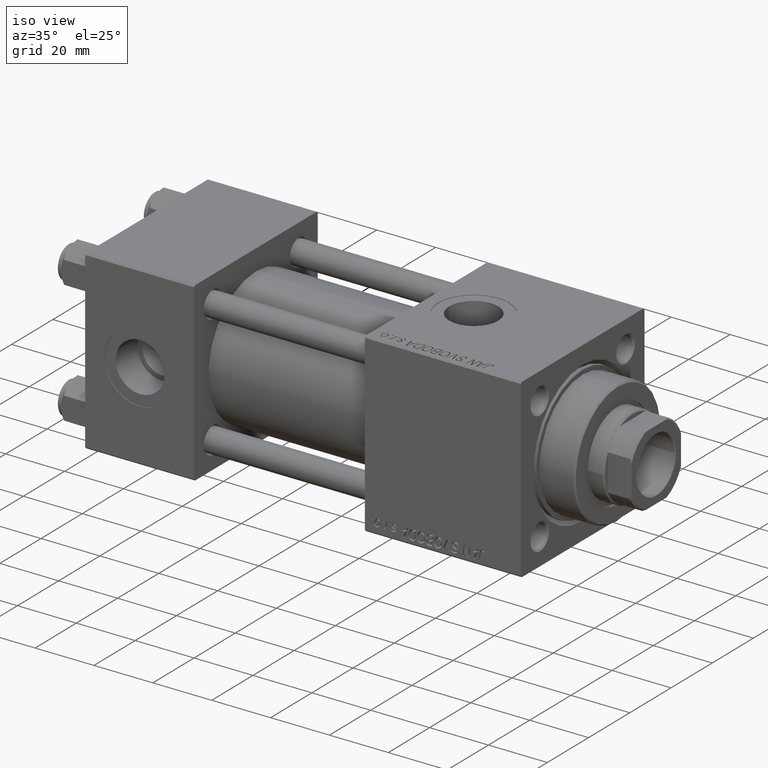
[diagram: clean part render]
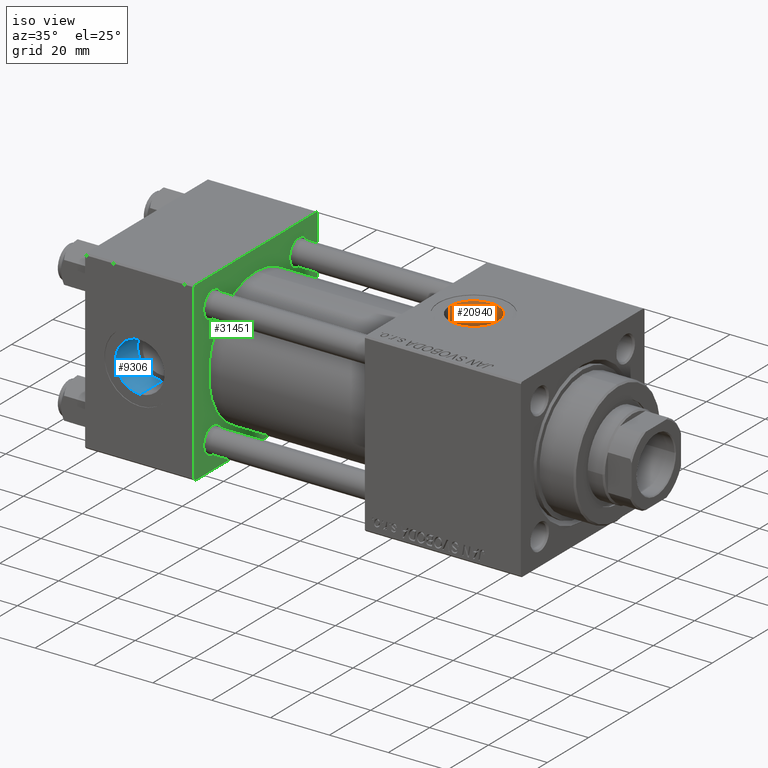
[diagram: same view with three faces highlighted in distinct colors, each labeled with its STEP entity id]
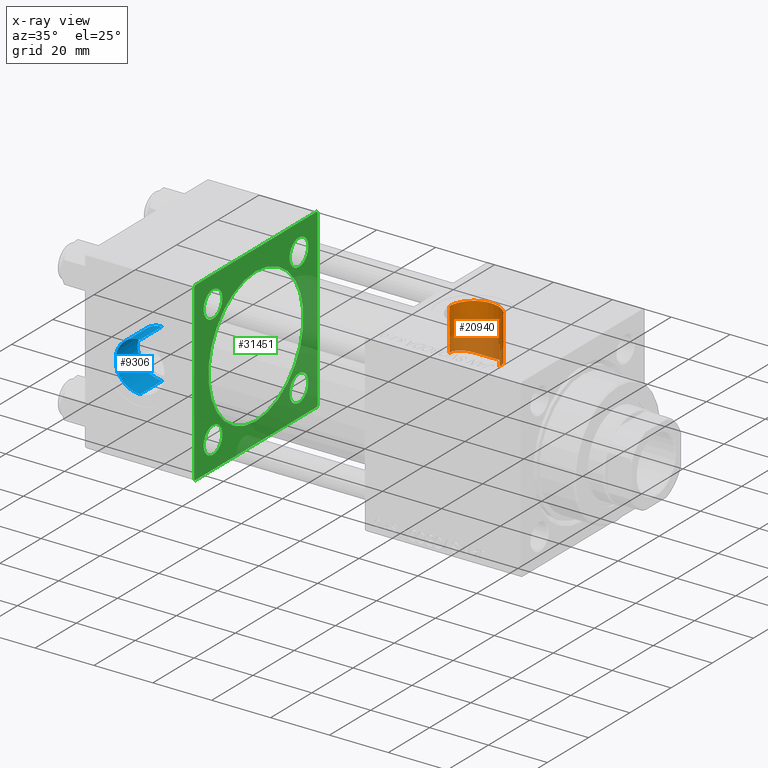
[diagram: x-ray of the same camera — body ghosted, the three highlighted faces saturated]
A machine part, iso view with three faces highlighted in distinct colors.
The next image is the same camera in x-ray (body ghosted, the three faces saturated) — at least one of them is partly hidden behind the body in this view.
Their STEP definitions:

[orange] entity #20940 — the highlighted cylindrical surface (edge-blend (fillet) strip) has radius 8.33 mm, axis along (0, 0, -1).
#1090 = CARTESIAN_POINT ( 'NONE',  ( 102.7748422588737611, 1.345113678925240475, 15.44384467796440497 ) ) ;
#1525 = DIRECTION ( 'NONE',  ( -0.000000000000000000, -0.000000000000000000, -1.000000000000000000 ) ) ;
#1835 = CARTESIAN_POINT ( 'NONE',  ( 118.1821809494404505, 4.252752687106064577, 14.91311828418762353 ) ) ;
#1926 = FACE_OUTER_BOUND ( 'NONE', #26411, .T. ) ;
#2587 = CARTESIAN_POINT ( 'NONE',  ( 119.2999999999999829, 0.7063285354565354002, 15.48389808801387701 ) ) ;
#2767 = VECTOR ( 'NONE', #33463, 1000.000000000000000 ) ;
#3403 = EDGE_CURVE ( 'NONE', #34019, #42695, #7935, .T. ) ;
#4410 = CARTESIAN_POINT ( 'NONE',  ( 114.7878989153694107, 7.423653917640651301, 13.60720322249615144 ) ) ;
#4443 = EDGE_CURVE ( 'NONE', #7072, #43447, #38496, .T. ) ;
#4902 = CARTESIAN_POINT ( 'NONE',  ( 103.4884433949717391, 3.639785051710008545, 15.07496769168805351 ) ) ;
#5156 = CARTESIAN_POINT ( 'NONE',  ( 105.7567134674390417, 6.493535737546835662, 14.07819411470011239 ) ) ;
#5408 = CARTESIAN_POINT ( 'NONE',  ( 108.5224199253087818, 7.970776178815810020, 13.29429473676388973 ) ) ;
#6659 = CARTESIAN_POINT ( 'NONE',  ( 118.5428870207784797, 3.544564506934533732, 15.09123298641117650 ) ) ;
#7072 = VERTEX_POINT ( 'NONE', #44964 ) ;
#7935 = B_SPLINE_CURVE_WITH_KNOTS ( 'NONE', 3,
 ( #45295, #37151, #48113, #32594 ),
 .UNSPECIFIED., .F., .F.,
 ( 4, 4 ),
 ( 0.000000000000000000, 0.0007063285354565328363 ),
 .UNSPECIFIED. ) ;
#8215 = CARTESIAN_POINT ( 'NONE',  ( 109.5605833038424208, 8.209149030831014215, 13.14769526555237533 ) ) ;
#8608 = AXIS2_PLACEMENT_3D ( 'NONE', #44179, #1525, #39853 ) ;
#8719 = CARTESIAN_POINT ( 'NONE',  ( 119.3300000000000125, 2.755455270027974659E-15, 22.50000000000000355 ) ) ;
#8963 = CARTESIAN_POINT ( 'NONE',  ( 110.0961245563538711, 8.285231283310348971, 13.09988401430628535 ) ) ;
#9299 = DIRECTION ( 'NONE',  ( 0.000000000000000000, 0.000000000000000000, -1.000000000000000000 ) ) ;
#9714 = CARTESIAN_POINT ( 'NONE',  ( 118.9347458643765805, 2.549478185781639983, 15.29108801674696139 ) ) ;
#10142 = CARTESIAN_POINT ( 'NONE',  ( 119.2999999999999829, 0.7063285354565354002, 52.79999999999999716 ) ) ;
#10463 = CARTESIAN_POINT ( 'NONE',  ( 119.1550002228559748, 1.780279521111761465, 15.40614980614642171 ) ) ;
#12262 = CARTESIAN_POINT ( 'NONE',  ( 103.0866881673992452, 2.655374492085107896, 15.27912538186901692 ) ) ;
#12460 = CARTESIAN_POINT ( 'NONE',  ( 119.3300000000000125, -2.449316168263869032E-15, 52.79999999999999716 ) ) ;
#12770 = CARTESIAN_POINT ( 'NONE',  ( 107.3002806938656590, 7.468012193495477291, 13.58288275005221379 ) ) ;
#13014 = CARTESIAN_POINT ( 'NONE',  ( 112.7879913300364905, 8.140303239488138942, 13.19058330274246593 ) ) ;
#14606 = ORIENTED_EDGE ( 'NONE', *, *, #49025, .F. ) ;
#15828 = CARTESIAN_POINT ( 'NONE',  ( 114.0650487448087489, 7.750150897617362311, 13.42370947118261171 ) ) ;
#16822 = CARTESIAN_POINT ( 'NONE',  ( 102.9323351773737869, 2.143895289495521883, 15.36035123208332109 ) ) ;
#17260 = LINE ( 'NONE', #12460, #41518 ) ;
#17321 = CARTESIAN_POINT ( 'NONE',  ( 116.1213706297519224, 6.590259460215506238, 14.03424939317718945 ) ) ;
#18062 = CARTESIAN_POINT ( 'NONE',  ( 115.7013846757648139, 6.896553212426753454, 13.88449017423048204 ) ) ;
#19064 = EDGE_CURVE ( 'NONE', #7072, #22666, #49962, .T. ) ;
#19450 = EDGE_CURVE ( 'NONE', #43447, #40252, #31754, .T. ) ;
#19876 = CARTESIAN_POINT ( 'NONE',  ( 115.0228866172804487, 7.298933092229524355, 13.67473780800534833 ) ) ;
#20366 = CARTESIAN_POINT ( 'NONE',  ( 103.7382412053277676, 4.114622947877689896, 14.95093430025990600 ) ) ;
#20621 = CARTESIAN_POINT ( 'NONE',  ( 111.1827731937053017, 8.345639263937126628, 13.06143459154865738 ) ) ;
#20641 = ORIENTED_EDGE ( 'NONE', *, *, #19450, .T. ) ;
#20867 = CARTESIAN_POINT ( 'NONE',  ( 109.2976579557378756, 8.158530844714539043, 13.17929287996980747 ) ) ;
#20940 = ADVANCED_FACE ( 'NONE', ( #1926 ), #44322, .F. ) ;
#21115 = CARTESIAN_POINT ( 'NONE',  ( 116.9021014551140070, 5.901284207169342544, 14.33759116759393493 ) ) ;
#21370 = CARTESIAN_POINT ( 'NONE',  ( 118.8491620312711774, 2.801948762054946140, 15.24674929831635595 ) ) ;
#22666 = VERTEX_POINT ( 'NONE', #46671 ) ;
#23388 = ORIENTED_EDGE ( 'NONE', *, *, #4443, .T. ) ;
#23640 = ORIENTED_EDGE ( 'NONE', *, *, #3403, .T. ) ;
#23687 = CARTESIAN_POINT ( 'NONE',  ( 113.5653903393932751, 7.929573453247051873, 13.31850891624571531 ) ) ;
#23942 = CARTESIAN_POINT ( 'NONE',  ( 102.7353150131715722, 1.075514947314766045, 15.46498077916762526 ) ) ;
#24432 = CARTESIAN_POINT ( 'NONE',  ( 106.6103928475615135, 7.084409057837727453, 13.78705986442867193 ) ) ;
#24623 = DIRECTION ( 'NONE',  ( 0.000000000000000000, 0.000000000000000000, -1.000000000000000000 ) ) ;
#25173 = CARTESIAN_POINT ( 'NONE',  ( 119.2535736795805832, 1.251879847823938130, 15.45901168942802251 ) ) ;
#26411 = EDGE_LOOP ( 'NONE', ( #36569, #45768, #23388, #20641, #14606, #23640 ) ) ;
#27488 = CARTESIAN_POINT ( 'NONE',  ( 104.3108638884341701, 4.991865470557804052, 14.68134318030003804 ) ) ;
#27990 = CARTESIAN_POINT ( 'NONE',  ( 102.6830263376666181, 0.5382373393380799342, 15.49298755787481774 ) ) ;
#29059 = CARTESIAN_POINT ( 'NONE',  ( 111.0000000000000000, -3.469446951953613794E-15, 52.79999999999999716 ) ) ;
#29735 = CARTESIAN_POINT ( 'NONE',  ( 117.9017814515972162, 4.693120186998884336, 14.77885283960395668 ) ) ;
#31754 = B_SPLINE_CURVE_WITH_KNOTS ( 'NONE', 3,
 ( #39661, #35354, #27990, #23942, #1090, #16822, #12262, #4902, #20366, #27488, #39422, #35849, #5156, #32291, #24432, #47566, #12770, #43730, #5408, #20867, #8215, #8963, #39915, #20621, #36107, #47806, #13014, #43985, #23687, #15828, #39173, #4410, #19876, #18062, #17321, #21115, #40906, #29735, #1835, #6659, #33543, #21370, #9714, #10463, #25173, #2587 ),
 .UNSPECIFIED., .F., .F.,
 ( 4, 2, 2, 2, 2, 2, 2, 2, 2, 2, 2, 2, 2, 2, 2, 2, 2, 2, 2, 2, 2, 2, 4 ),
 ( 0.02586561750490627698, 0.02667257115183745836, 0.02747952479876863974, 0.02909343209263099903, 0.03070733938649336178, 0.03232124668035572107, 0.03393515397421808383, 0.03474210762114926521, 0.03554906126808044659, 0.03716296856194277465, 0.03796992220887392133, 0.03877687585580506108, 0.04039078314966738914, 0.04119773679659853582, 0.04200469044352968251, 0.04281164409046082225, 0.04361859773739196200, 0.04523250503125424843, 0.04684641232511653486, 0.04846031961897881435, 0.04926727326590996797, 0.05007422691284112160, 0.05168813420670342190 ),
 .UNSPECIFIED. ) ;
#32291 = CARTESIAN_POINT ( 'NONE',  ( 106.3914020546078660, 6.943847275614624337, 13.85860288735603696 ) ) ;
#32594 = CARTESIAN_POINT ( 'NONE',  ( 119.3300000000000125, 2.755455270027974659E-15, 22.50000000000000355 ) ) ;
#33463 = DIRECTION ( 'NONE',  ( 0.000000000000000000, 0.000000000000000000, -1.000000000000000000 ) ) ;
#33543 = CARTESIAN_POINT ( 'NONE',  ( 118.6535066739793223, 3.299105492354561520, 15.14695296028899207 ) ) ;
#34019 = VERTEX_POINT ( 'NONE', #43824 ) ;
#35169 = DIRECTION ( 'NONE',  ( 0.000000000000000000, 0.000000000000000000, -1.000000000000000000 ) ) ;
#35354 = CARTESIAN_POINT ( 'NONE',  ( 102.6700000000000443, 0.2692781161559564818, 15.50000000000000355 ) ) ;
#35849 = CARTESIAN_POINT ( 'NONE',  ( 105.3619139893283432, 6.154303259437297058, 14.23165687271048085 ) ) ;
#36107 = CARTESIAN_POINT ( 'NONE',  ( 111.7204179385424112, 8.316316922132150680, 13.08044599360020044 ) ) ;
#36569 = ORIENTED_EDGE ( 'NONE', *, *, #45724, .F. ) ;
#36691 = VECTOR ( 'NONE', #35169, 1000.000000000000000 ) ;
#37151 = CARTESIAN_POINT ( 'NONE',  ( 119.3200361445783102, 0.4708856903043578401, 22.49630535626710781 ) ) ;
#37817 = AXIS2_PLACEMENT_3D ( 'NONE', #29059, #9299, #40243 ) ;
#38496 = LINE ( 'NONE', #42295, #36691 ) ;
#39173 = CARTESIAN_POINT ( 'NONE',  ( 114.3094557415239905, 7.648942304453065333, 13.48185071310164318 ) ) ;
#39422 = CARTESIAN_POINT ( 'NONE',  ( 104.6351521567280258, 5.399275359235570448, 14.53490046566675176 ) ) ;
#39661 = CARTESIAN_POINT ( 'NONE',  ( 102.6700000000000017, 1.898304232322969090E-15, 15.50000000000000000 ) ) ;
#39853 = DIRECTION ( 'NONE',  ( 1.000000000000000000, 0.000000000000000000, 0.000000000000000000 ) ) ;
#39915 = CARTESIAN_POINT ( 'NONE',  ( 110.3699255016522756, 8.310562936261201017, 13.08375847227048894 ) ) ;
#40243 = DIRECTION ( 'NONE',  ( -1.000000000000000000, 0.000000000000000000, 0.000000000000000000 ) ) ;
#40252 = VERTEX_POINT ( 'NONE', #41415 ) ;
#40906 = CARTESIAN_POINT ( 'NONE',  ( 117.2636960965467665, 5.515983638965261449, 14.49185263653180478 ) ) ;
#41415 = CARTESIAN_POINT ( 'NONE',  ( 119.2999999999999829, 0.7063285354565354002, 15.48389808801387701 ) ) ;
#41518 = VECTOR ( 'NONE', #24623, 1000.000000000000000 ) ;
#42295 = CARTESIAN_POINT ( 'NONE',  ( 102.6700000000000017, -3.469446951953613794E-15, 52.79999999999999716 ) ) ;
#42695 = VERTEX_POINT ( 'NONE', #8719 ) ;
#43447 = VERTEX_POINT ( 'NONE', #43465 ) ;
#43465 = CARTESIAN_POINT ( 'NONE',  ( 102.6700000000000017, 1.898304232322969090E-15, 15.50000000000000000 ) ) ;
#43730 = CARTESIAN_POINT ( 'NONE',  ( 108.0235363201844763, 7.798107477347327787, 13.39787891672378706 ) ) ;
#43824 = CARTESIAN_POINT ( 'NONE',  ( 119.2999999999999829, 0.7063285354565354002, 22.48891060056044466 ) ) ;
#43985 = CARTESIAN_POINT ( 'NONE',  ( 113.3101403164750565, 8.007790053772854577, 13.27144766602746984 ) ) ;
#44179 = CARTESIAN_POINT ( 'NONE',  ( 111.0000000000000000, -3.469446951953613794E-15, 29.79999999999999716 ) ) ;
#44322 = CYLINDRICAL_SURFACE ( 'NONE', #37817, 8.330000000000003624 ) ;
#44911 = LINE ( 'NONE', #10142, #2767 ) ;
#44964 = CARTESIAN_POINT ( 'NONE',  ( 102.6700000000000017, -3.469446951953613794E-15, 29.79999999999999716 ) ) ;
#45295 = CARTESIAN_POINT ( 'NONE',  ( 119.2999999999999829, 0.7063285354565354002, 22.48891060056044466 ) ) ;
#45724 = EDGE_CURVE ( 'NONE', #22666, #42695, #17260, .T. ) ;
#45768 = ORIENTED_EDGE ( 'NONE', *, *, #19064, .F. ) ;
#46671 = CARTESIAN_POINT ( 'NONE',  ( 119.3300000000000125, -2.449316168263869821E-15, 29.79999999999999716 ) ) ;
#47566 = CARTESIAN_POINT ( 'NONE',  ( 107.0641356425913244, 7.346187746824329956, 13.64937350183227771 ) ) ;
#47806 = CARTESIAN_POINT ( 'NONE',  ( 112.5206788388489372, 8.194464177599160237, 13.15686343614056142 ) ) ;
#48113 = CARTESIAN_POINT ( 'NONE',  ( 119.3300000000000125, 0.2354428451521802246, 22.50000000000000355 ) ) ;
#49025 = EDGE_CURVE ( 'NONE', #34019, #40252, #44911, .T. ) ;
#49962 = CIRCLE ( 'NONE', #8608, 8.330000000000003624 ) ;

[blue] entity #9306 — the highlighted cylindrical surface (edge-blend (fillet) strip) has radius 8.33 mm, axis along (-0, -1, -0).
#729 = AXIS2_PLACEMENT_3D ( 'NONE', #47691, #6039, #12655 ) ;
#847 = CARTESIAN_POINT ( 'NONE',  ( 18.50000000000000000, -19.09999999999999787, 8.330000000000003624 ) ) ;
#1406 = EDGE_CURVE ( 'NONE', #42720, #17650, #49504, .T. ) ;
#3674 = CARTESIAN_POINT ( 'NONE',  ( 18.50000000000000000, -19.09999999999999787, -8.330000000000000071 ) ) ;
#6039 = DIRECTION ( 'NONE',  ( 0.000000000000000000, -1.000000000000000000, -8.673617379884036705E-17 ) ) ;
#6205 = VECTOR ( 'NONE', #41679, 1000.000000000000000 ) ;
#6690 = CIRCLE ( 'NONE', #30985, 8.330000000000001847 ) ;
#9306 = ADVANCED_FACE ( 'NONE', ( #38062 ), #42629, .F. ) ;
#11620 = EDGE_LOOP ( 'NONE', ( #25888, #35494, #38956, #27765 ) ) ;
#11845 = CARTESIAN_POINT ( 'NONE',  ( 18.50000000000000000, -19.09999999999999787, 9.454242944073598665E-16 ) ) ;
#12655 = DIRECTION ( 'NONE',  ( 0.000000000000000000, 0.000000000000000000, -1.000000000000000000 ) ) ;
#15400 = DIRECTION ( 'NONE',  ( 0.000000000000000000, -1.000000000000000000, -8.673617379884036705E-17 ) ) ;
#16932 = VERTEX_POINT ( 'NONE', #42083 ) ;
#17650 = VERTEX_POINT ( 'NONE', #29273 ) ;
#20184 = EDGE_CURVE ( 'NONE', #40124, #16932, #42438, .T. ) ;
#21812 = DIRECTION ( 'NONE',  ( -0.000000000000000000, -1.000000000000000000, -8.673617379884036705E-17 ) ) ;
#25888 = ORIENTED_EDGE ( 'NONE', *, *, #45967, .F. ) ;
#26308 = EDGE_CURVE ( 'NONE', #17650, #16932, #44504, .T. ) ;
#26701 = CARTESIAN_POINT ( 'NONE',  ( 18.50000000000000000, -19.09999999999999787, -8.330000000000000071 ) ) ;
#27765 = ORIENTED_EDGE ( 'NONE', *, *, #20184, .F. ) ;
#29273 = CARTESIAN_POINT ( 'NONE',  ( 18.50000000000000000, -29.80000000000000071, 8.330000000000001847 ) ) ;
#30985 = AXIS2_PLACEMENT_3D ( 'NONE', #11845, #15400, #46879 ) ;
#31193 = DIRECTION ( 'NONE',  ( 0.000000000000000000, 0.000000000000000000, -1.000000000000000000 ) ) ;
#35494 = ORIENTED_EDGE ( 'NONE', *, *, #1406, .T. ) ;
#37811 = CARTESIAN_POINT ( 'NONE',  ( 18.50000000000000000, -19.09999999999999787, 9.454242944073598665E-16 ) ) ;
#38062 = FACE_OUTER_BOUND ( 'NONE', #11620, .T. ) ;
#38956 = ORIENTED_EDGE ( 'NONE', *, *, #26308, .T. ) ;
#40124 = VERTEX_POINT ( 'NONE', #3674 ) ;
#40849 = CARTESIAN_POINT ( 'NONE',  ( 18.50000000000000000, -19.09999999999999787, 8.330000000000003624 ) ) ;
#41679 = DIRECTION ( 'NONE',  ( -0.000000000000000000, -1.000000000000000000, -8.673617379884036705E-17 ) ) ;
#42083 = CARTESIAN_POINT ( 'NONE',  ( 18.50000000000000000, -29.80000000000000071, -8.330000000000001847 ) ) ;
#42438 = LINE ( 'NONE', #26701, #6205 ) ;
#42629 = CYLINDRICAL_SURFACE ( 'NONE', #43259, 8.330000000000001847 ) ;
#42720 = VERTEX_POINT ( 'NONE', #847 ) ;
#43259 = AXIS2_PLACEMENT_3D ( 'NONE', #37811, #46456, #31193 ) ;
#44504 = CIRCLE ( 'NONE', #729, 8.330000000000001847 ) ;
#45523 = VECTOR ( 'NONE', #21812, 1000.000000000000000 ) ;
#45967 = EDGE_CURVE ( 'NONE', #42720, #40124, #6690, .T. ) ;
#46456 = DIRECTION ( 'NONE',  ( -0.000000000000000000, -1.000000000000000000, -8.673617379884036705E-17 ) ) ;
#46879 = DIRECTION ( 'NONE',  ( 0.000000000000000000, 0.000000000000000000, -1.000000000000000000 ) ) ;
#47691 = CARTESIAN_POINT ( 'NONE',  ( 18.50000000000000000, -29.80000000000000071, 1.734723475976808635E-17 ) ) ;
#49504 = LINE ( 'NONE', #40849, #45523 ) ;

[green] entity #31451 — the highlighted planar face has unit normal (-1, 0, 0).
#279 = DIRECTION ( 'NONE',  ( -0.000000000000000000, 0.7071067811865574537, 0.7071067811865376918 ) ) ;
#300 = CIRCLE ( 'NONE', #10046, 4.499999999999990230 ) ;
#814 = FACE_BOUND ( 'NONE', #28755, .T. ) ;
#917 = VERTEX_POINT ( 'NONE', #44364 ) ;
#1301 = AXIS2_PLACEMENT_3D ( 'NONE', #3675, #46317, #41992 ) ;
#1407 = CARTESIAN_POINT ( 'NONE',  ( 37.00000000000000000, -2.602085213965210642E-15, 0.000000000000000000 ) ) ;
#1598 = CARTESIAN_POINT ( 'NONE',  ( 37.00000000000000000, -2.602085213965210642E-15, 0.000000000000000000 ) ) ;
#1803 = VECTOR ( 'NONE', #22546, 1000.000000000000114 ) ;
#1858 = VECTOR ( 'NONE', #47618, 1000.000000000000000 ) ;
#1862 = CIRCLE ( 'NONE', #29306, 4.499999999999990230 ) ;
#1880 = VECTOR ( 'NONE', #37049, 1000.000000000000000 ) ;
#1889 = DIRECTION ( 'NONE',  ( 0.000000000000000000, 0.000000000000000000, 1.000000000000000000 ) ) ;
#1940 = VERTEX_POINT ( 'NONE', #47128 ) ;
#1983 = LINE ( 'NONE', #41294, #15665 ) ;
#2146 = DIRECTION ( 'NONE',  ( -1.000000000000000000, 0.000000000000000000, -0.000000000000000000 ) ) ;
#2746 = ORIENTED_EDGE ( 'NONE', *, *, #4859, .T. ) ;
#2810 = DIRECTION ( 'NONE',  ( 0.000000000000000000, 0.7071067811865474617, -0.7071067811865474617 ) ) ;
#3311 = LINE ( 'NONE', #41367, #37295 ) ;
#3675 = CARTESIAN_POINT ( 'NONE',  ( 37.00000000000000000, -20.84999999999999076, 20.85000000000000497 ) ) ;
#3807 = EDGE_LOOP ( 'NONE', ( #7277, #26837 ) ) ;
#4384 = ORIENTED_EDGE ( 'NONE', *, *, #28495, .T. ) ;
#4577 = CARTESIAN_POINT ( 'NONE',  ( 37.00000000000000000, 20.84999999999999787, -25.34999999999999076 ) ) ;
#4859 = EDGE_CURVE ( 'NONE', #1940, #14398, #36547, .T. ) ;
#5107 = DIRECTION ( 'NONE',  ( 0.000000000000000000, 0.000000000000000000, 1.000000000000000000 ) ) ;
#5248 = ORIENTED_EDGE ( 'NONE', *, *, #9127, .T. ) ;
#5374 = CIRCLE ( 'NONE', #1301, 4.499999999999990230 ) ;
#5921 = DIRECTION ( 'NONE',  ( 0.000000000000000000, 0.000000000000000000, 1.000000000000000000 ) ) ;
#5994 = ORIENTED_EDGE ( 'NONE', *, *, #42490, .T. ) ;
#6123 = VERTEX_POINT ( 'NONE', #34948 ) ;
#6159 = EDGE_CURVE ( 'NONE', #43427, #1940, #31152, .T. ) ;
#6727 = CARTESIAN_POINT ( 'NONE',  ( 37.00000000000000000, 20.84999999999999787, 20.85000000000000142 ) ) ;
#7081 = CARTESIAN_POINT ( 'NONE',  ( 37.00000000000000000, 29.49999999999999289, 30.00000000000000000 ) ) ;
#7277 = ORIENTED_EDGE ( 'NONE', *, *, #9187, .T. ) ;
#7500 = EDGE_CURVE ( 'NONE', #49513, #41013, #49708, .T. ) ;
#8253 = AXIS2_PLACEMENT_3D ( 'NONE', #1598, #17076, #5921 ) ;
#8929 = VERTEX_POINT ( 'NONE', #14343 ) ;
#9127 = EDGE_CURVE ( 'NONE', #41013, #49513, #300, .T. ) ;
#9187 = EDGE_CURVE ( 'NONE', #12851, #30074, #28637, .T. ) ;
#10046 = AXIS2_PLACEMENT_3D ( 'NONE', #24888, #40121, #16029 ) ;
#10352 = DIRECTION ( 'NONE',  ( 0.000000000000000000, -1.000000000000000000, -1.156482317317871725E-16 ) ) ;
#11258 = EDGE_LOOP ( 'NONE', ( #47841, #23788 ) ) ;
#11494 = AXIS2_PLACEMENT_3D ( 'NONE', #1407, #16887, #46201 ) ;
#11956 = EDGE_CURVE ( 'NONE', #50203, #35382, #27783, .T. ) ;
#12016 = VERTEX_POINT ( 'NONE', #13820 ) ;
#12651 = CARTESIAN_POINT ( 'NONE',  ( 37.00000000000000000, -20.84999999999999076, -25.34999999999999432 ) ) ;
#12726 = CARTESIAN_POINT ( 'NONE',  ( 37.00000000000000000, -20.84999999999999076, -20.85000000000000497 ) ) ;
#12851 = VERTEX_POINT ( 'NONE', #12651 ) ;
#13381 = AXIS2_PLACEMENT_3D ( 'NONE', #6727, #29290, #25988 ) ;
#13785 = VERTEX_POINT ( 'NONE', #44452 ) ;
#13820 = CARTESIAN_POINT ( 'NONE',  ( 37.00000000000000000, 29.49999999999997868, -30.00000000000000000 ) ) ;
#14321 = CARTESIAN_POINT ( 'NONE',  ( 37.00000000000000000, -30.00000000000000000, 29.49999999999999289 ) ) ;
#14343 = CARTESIAN_POINT ( 'NONE',  ( 37.00000000000000000, 2.146024240737012665E-16, -23.00000000000000000 ) ) ;
#14398 = VERTEX_POINT ( 'NONE', #37501 ) ;
#14432 = CARTESIAN_POINT ( 'NONE',  ( 37.00000000000000000, -20.84999999999999076, -20.85000000000000497 ) ) ;
#15548 = CARTESIAN_POINT ( 'NONE',  ( 37.00000000000000000, 29.99999999999999289, 29.50000000000000000 ) ) ;
#15665 = VECTOR ( 'NONE', #10352, 1000.000000000000000 ) ;
#16029 = DIRECTION ( 'NONE',  ( 0.000000000000000000, 0.000000000000000000, 1.000000000000000000 ) ) ;
#16543 = DIRECTION ( 'NONE',  ( -0.000000000000000000, 0.000000000000000000, 1.000000000000000000 ) ) ;
#16595 = ORIENTED_EDGE ( 'NONE', *, *, #11956, .T. ) ;
#16887 = DIRECTION ( 'NONE',  ( 1.000000000000000000, -0.000000000000000000, 0.000000000000000000 ) ) ;
#17076 = DIRECTION ( 'NONE',  ( 1.000000000000000000, -0.000000000000000000, 0.000000000000000000 ) ) ;
#17780 = VECTOR ( 'NONE', #279, 999.9999999999998863 ) ;
#18818 = CIRCLE ( 'NONE', #48826, 4.499999999999990230 ) ;
#19896 = EDGE_CURVE ( 'NONE', #13785, #43514, #5374, .T. ) ;
#20091 = CARTESIAN_POINT ( 'NONE',  ( 37.00000000000000000, 0.000000000000000000, 0.000000000000000000 ) ) ;
#20454 = AXIS2_PLACEMENT_3D ( 'NONE', #37389, #2146, #1889 ) ;
#22546 = DIRECTION ( 'NONE',  ( 0.000000000000000000, -0.7071067811865474617, 0.7071067811865474617 ) ) ;
#22650 = AXIS2_PLACEMENT_3D ( 'NONE', #20091, #24402, #16543 ) ;
#23202 = DIRECTION ( 'NONE',  ( 0.000000000000000000, 0.000000000000000000, 1.000000000000000000 ) ) ;
#23444 = DIRECTION ( 'NONE',  ( -1.000000000000000000, 0.000000000000000000, -0.000000000000000000 ) ) ;
#23560 = CARTESIAN_POINT ( 'NONE',  ( 37.00000000000000000, -30.00000000000000000, 29.49999999999999289 ) ) ;
#23788 = ORIENTED_EDGE ( 'NONE', *, *, #37763, .F. ) ;
#24402 = DIRECTION ( 'NONE',  ( -1.000000000000000000, 0.000000000000000000, -0.000000000000000000 ) ) ;
#24888 = CARTESIAN_POINT ( 'NONE',  ( 37.00000000000000000, 20.84999999999999787, -20.85000000000000142 ) ) ;
#25185 = ORIENTED_EDGE ( 'NONE', *, *, #46920, .F. ) ;
#25988 = DIRECTION ( 'NONE',  ( 0.000000000000000000, 0.000000000000000000, 1.000000000000000000 ) ) ;
#26237 = CARTESIAN_POINT ( 'NONE',  ( 37.00000000000000000, 20.84999999999999787, -16.35000000000001208 ) ) ;
#26356 = DIRECTION ( 'NONE',  ( -1.000000000000000000, 0.000000000000000000, -0.000000000000000000 ) ) ;
#26837 = ORIENTED_EDGE ( 'NONE', *, *, #43693, .T. ) ;
#26910 = CARTESIAN_POINT ( 'NONE',  ( 37.00000000000000000, -20.84999999999999076, 25.34999999999999432 ) ) ;
#27039 = EDGE_LOOP ( 'NONE', ( #37335, #5994 ) ) ;
#27538 = DIRECTION ( 'NONE',  ( 0.000000000000000000, 0.000000000000000000, -1.000000000000000000 ) ) ;
#27783 = LINE ( 'NONE', #47613, #28708 ) ;
#28044 = CARTESIAN_POINT ( 'NONE',  ( 37.00000000000000000, 29.99999999999999289, 30.00000000000000000 ) ) ;
#28257 = CARTESIAN_POINT ( 'NONE',  ( 37.00000000000000000, -2.602085213965210642E-15, 23.00000000000000000 ) ) ;
#28495 = EDGE_CURVE ( 'NONE', #12016, #49903, #37845, .T. ) ;
#28535 = LINE ( 'NONE', #28044, #1858 ) ;
#28637 = CIRCLE ( 'NONE', #38401, 4.499999999999990230 ) ;
#28708 = VECTOR ( 'NONE', #27538, 1000.000000000000000 ) ;
#28755 = EDGE_LOOP ( 'NONE', ( #5248, #40739 ) ) ;
#29290 = DIRECTION ( 'NONE',  ( -1.000000000000000000, 0.000000000000000000, -0.000000000000000000 ) ) ;
#29306 = AXIS2_PLACEMENT_3D ( 'NONE', #14432, #26356, #38272 ) ;
#29979 = CARTESIAN_POINT ( 'NONE',  ( 37.00000000000000000, 29.99999999999999289, -29.50000000000000000 ) ) ;
#30074 = VERTEX_POINT ( 'NONE', #33872 ) ;
#30651 = ORIENTED_EDGE ( 'NONE', *, *, #19896, .T. ) ;
#31142 = ORIENTED_EDGE ( 'NONE', *, *, #6159, .T. ) ;
#31152 = LINE ( 'NONE', #7081, #1803 ) ;
#31270 = PLANE ( 'NONE',  #22650 ) ;
#31318 = ORIENTED_EDGE ( 'NONE', *, *, #49437, .T. ) ;
#31451 = ADVANCED_FACE ( 'NONE', ( #32261, #814, #43703, #43953, #35821, #43461 ), #31270, .F. ) ;
#31626 = CARTESIAN_POINT ( 'NONE',  ( 37.00000000000000000, 20.84999999999999787, 16.35000000000001208 ) ) ;
#32261 = FACE_BOUND ( 'NONE', #3807, .T. ) ;
#32995 = CARTESIAN_POINT ( 'NONE',  ( 37.00000000000000000, 29.99999999999999289, 30.00000000000000000 ) ) ;
#33040 = VERTEX_POINT ( 'NONE', #31626 ) ;
#33579 = EDGE_CURVE ( 'NONE', #35382, #917, #3311, .T. ) ;
#33595 = LINE ( 'NONE', #14321, #40047 ) ;
#33622 = AXIS2_PLACEMENT_3D ( 'NONE', #42485, #23444, #23202 ) ;
#33872 = CARTESIAN_POINT ( 'NONE',  ( 37.00000000000000000, -20.84999999999999076, -16.35000000000001208 ) ) ;
#34203 = VERTEX_POINT ( 'NONE', #28257 ) ;
#34948 = CARTESIAN_POINT ( 'NONE',  ( 37.00000000000000000, 20.84999999999999787, 25.34999999999999076 ) ) ;
#35382 = VERTEX_POINT ( 'NONE', #48032 ) ;
#35772 = DIRECTION ( 'NONE',  ( 0.000000000000000000, 0.000000000000000000, 1.000000000000000000 ) ) ;
#35806 = CIRCLE ( 'NONE', #11494, 23.00000000000000000 ) ;
#35821 = FACE_BOUND ( 'NONE', #11258, .T. ) ;
#36547 = LINE ( 'NONE', #32995, #1880 ) ;
#37049 = DIRECTION ( 'NONE',  ( 0.000000000000000000, -1.000000000000000000, -1.156482317317871725E-16 ) ) ;
#37295 = VECTOR ( 'NONE', #2810, 1000.000000000000114 ) ;
#37335 = ORIENTED_EDGE ( 'NONE', *, *, #42542, .T. ) ;
#37389 = CARTESIAN_POINT ( 'NONE',  ( 37.00000000000000000, 20.84999999999999787, -20.85000000000000142 ) ) ;
#37501 = CARTESIAN_POINT ( 'NONE',  ( 37.00000000000000000, -29.49999999999998579, 29.99999999999999289 ) ) ;
#37682 = CIRCLE ( 'NONE', #13381, 4.499999999999990230 ) ;
#37741 = ORIENTED_EDGE ( 'NONE', *, *, #48464, .F. ) ;
#37763 = EDGE_CURVE ( 'NONE', #8929, #34203, #35806, .T. ) ;
#37845 = LINE ( 'NONE', #41652, #17780 ) ;
#37943 = EDGE_CURVE ( 'NONE', #34203, #8929, #45553, .T. ) ;
#38272 = DIRECTION ( 'NONE',  ( 0.000000000000000000, 0.000000000000000000, 1.000000000000000000 ) ) ;
#38401 = AXIS2_PLACEMENT_3D ( 'NONE', #12726, #39867, #5107 ) ;
#39585 = CARTESIAN_POINT ( 'NONE',  ( 37.00000000000000000, -20.84999999999999076, 20.85000000000000497 ) ) ;
#39867 = DIRECTION ( 'NONE',  ( -1.000000000000000000, 0.000000000000000000, -0.000000000000000000 ) ) ;
#40047 = VECTOR ( 'NONE', #48106, 1000.000000000000114 ) ;
#40121 = DIRECTION ( 'NONE',  ( -1.000000000000000000, 0.000000000000000000, -0.000000000000000000 ) ) ;
#40739 = ORIENTED_EDGE ( 'NONE', *, *, #7500, .T. ) ;
#41013 = VERTEX_POINT ( 'NONE', #4577 ) ;
#41294 = CARTESIAN_POINT ( 'NONE',  ( 37.00000000000000000, 29.99999999999999289, -30.00000000000000000 ) ) ;
#41367 = CARTESIAN_POINT ( 'NONE',  ( 37.00000000000000000, -29.50000000000001066, -30.00000000000000711 ) ) ;
#41652 = CARTESIAN_POINT ( 'NONE',  ( 37.00000000000000000, 29.99999999999999289, -29.50000000000000000 ) ) ;
#41969 = DIRECTION ( 'NONE',  ( -1.000000000000000000, 0.000000000000000000, -0.000000000000000000 ) ) ;
#41992 = DIRECTION ( 'NONE',  ( 0.000000000000000000, 0.000000000000000000, 1.000000000000000000 ) ) ;
#42433 = ORIENTED_EDGE ( 'NONE', *, *, #44489, .T. ) ;
#42485 = CARTESIAN_POINT ( 'NONE',  ( 37.00000000000000000, 20.84999999999999787, 20.85000000000000142 ) ) ;
#42490 = EDGE_CURVE ( 'NONE', #6123, #33040, #37682, .T. ) ;
#42542 = EDGE_CURVE ( 'NONE', #33040, #6123, #49048, .T. ) ;
#43427 = VERTEX_POINT ( 'NONE', #15548 ) ;
#43461 = FACE_OUTER_BOUND ( 'NONE', #48331, .T. ) ;
#43514 = VERTEX_POINT ( 'NONE', #26910 ) ;
#43693 = EDGE_CURVE ( 'NONE', #30074, #12851, #1862, .T. ) ;
#43703 = FACE_BOUND ( 'NONE', #45726, .T. ) ;
#43953 = FACE_BOUND ( 'NONE', #27039, .T. ) ;
#43966 = ORIENTED_EDGE ( 'NONE', *, *, #33579, .T. ) ;
#44364 = CARTESIAN_POINT ( 'NONE',  ( 37.00000000000000000, -29.50000000000000000, -30.00000000000000711 ) ) ;
#44452 = CARTESIAN_POINT ( 'NONE',  ( 37.00000000000000000, -20.84999999999999076, 16.35000000000001208 ) ) ;
#44489 = EDGE_CURVE ( 'NONE', #43514, #13785, #18818, .T. ) ;
#45553 = CIRCLE ( 'NONE', #8253, 23.00000000000000000 ) ;
#45726 = EDGE_LOOP ( 'NONE', ( #30651, #42433 ) ) ;
#46201 = DIRECTION ( 'NONE',  ( 0.000000000000000000, 0.000000000000000000, 1.000000000000000000 ) ) ;
#46317 = DIRECTION ( 'NONE',  ( -1.000000000000000000, 0.000000000000000000, -0.000000000000000000 ) ) ;
#46920 = EDGE_CURVE ( 'NONE', #43427, #49903, #28535, .T. ) ;
#47128 = CARTESIAN_POINT ( 'NONE',  ( 37.00000000000000000, 29.49999999999999289, 30.00000000000000000 ) ) ;
#47613 = CARTESIAN_POINT ( 'NONE',  ( 37.00000000000000000, -30.00000000000000000, 29.99999999999999289 ) ) ;
#47618 = DIRECTION ( 'NONE',  ( 0.000000000000000000, 0.000000000000000000, -1.000000000000000000 ) ) ;
#47841 = ORIENTED_EDGE ( 'NONE', *, *, #37943, .F. ) ;
#48032 = CARTESIAN_POINT ( 'NONE',  ( 37.00000000000000000, -30.00000000000000000, -29.50000000000001776 ) ) ;
#48106 = DIRECTION ( 'NONE',  ( -0.000000000000000000, -0.7071067811865474617, -0.7071067811865474617 ) ) ;
#48331 = EDGE_LOOP ( 'NONE', ( #37741, #4384, #25185, #31142, #2746, #31318, #16595, #43966 ) ) ;
#48464 = EDGE_CURVE ( 'NONE', #12016, #917, #1983, .T. ) ;
#48826 = AXIS2_PLACEMENT_3D ( 'NONE', #39585, #41969, #35772 ) ;
#49048 = CIRCLE ( 'NONE', #33622, 4.499999999999990230 ) ;
#49437 = EDGE_CURVE ( 'NONE', #14398, #50203, #33595, .T. ) ;
#49513 = VERTEX_POINT ( 'NONE', #26237 ) ;
#49708 = CIRCLE ( 'NONE', #20454, 4.499999999999990230 ) ;
#49903 = VERTEX_POINT ( 'NONE', #29979 ) ;
#50203 = VERTEX_POINT ( 'NONE', #23560 ) ;